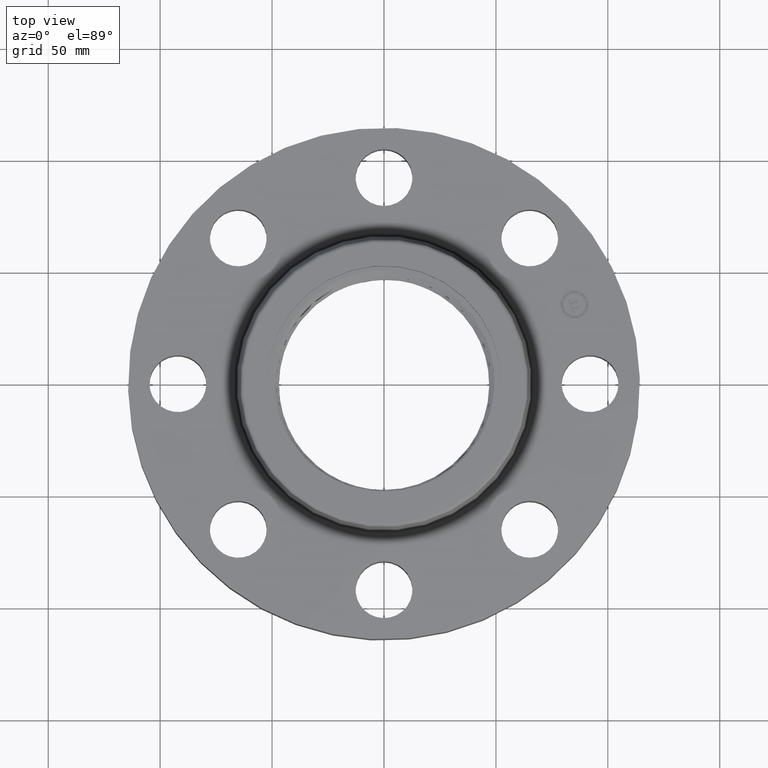
[diagram: clean part render]
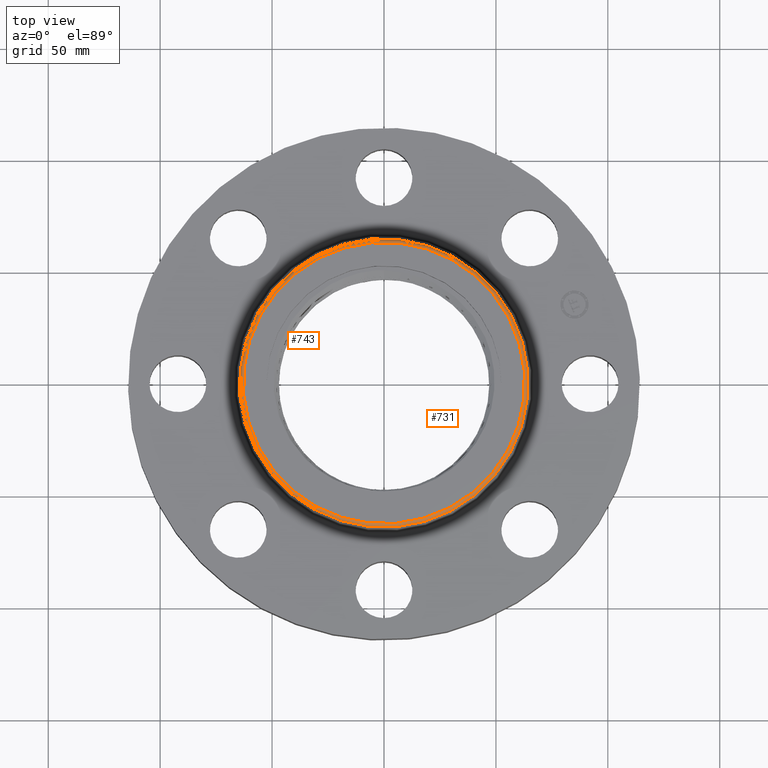
[diagram: same view with one multi-face feature highlighted, each face labeled with its STEP entity id]
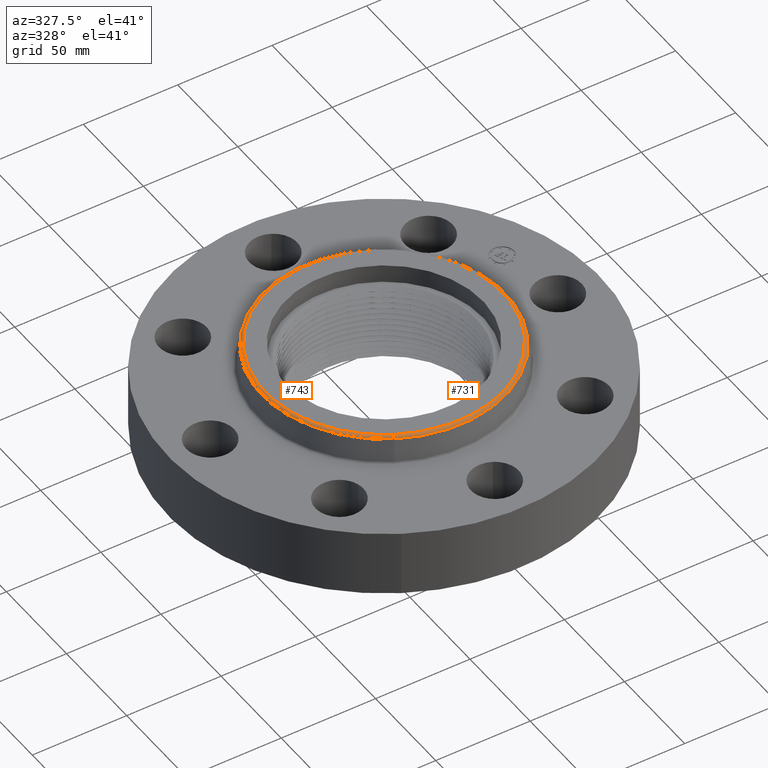
[diagram: same view with one multi-face feature highlighted, each face labeled with its STEP entity id]
A machine part, top view. The highlighted faces form ONE feature: a constant-radius fillet chain: 2 tangent blend faces with common blend radius 1.524 mm. The faces share edges in the B-rep.
A second angle (auxiliary view) of the same feature is appended — it is thin or edge-on in the first view.
Their STEP definitions:
[1] entity #731 (Torus):
#672=AXIS2_PLACEMENT_3D('Circle Axis2P3D',#670,#671,$) ;
#704=AXIS2_PLACEMENT_3D('Torus Axis2P3D',#701,#702,#703) ;
#708=AXIS2_PLACEMENT_3D('Circle Axis2P3D',#706,#707,$) ;
#715=AXIS2_PLACEMENT_3D('Circle Axis2P3D',#713,#714,$) ;
#722=AXIS2_PLACEMENT_3D('Circle Axis2P3D',#720,#721,$) ;
#667=CARTESIAN_POINT('Vertex',(1.21534344222,2.22467124864,1.89041889067)) ;
#670=CARTESIAN_POINT('Axis2P3D Location',(0.,0.,1.89041889067)) ;
#674=CARTESIAN_POINT('Vertex',(-1.21534344222,-2.22467124864,1.89041889067)) ;
#701=CARTESIAN_POINT('Axis2P3D Location',(0.,0.,1.88000000001)) ;
#706=CARTESIAN_POINT('Axis2P3D Location',(1.18701492297,2.17281624199,1.88000000001)) ;
#710=CARTESIAN_POINT('Vertex',(1.18701492297,2.17281624199,1.94000000001)) ;
#713=CARTESIAN_POINT('Axis2P3D Location',(0.,0.,1.94000000001)) ;
#717=CARTESIAN_POINT('Vertex',(-1.18701492297,-2.17281624199,1.94000000001)) ;
#720=CARTESIAN_POINT('Axis2P3D Location',(-1.18701492297,-2.17281624199,1.88000000001)) ;
#671=DIRECTION('Axis2P3D Direction',(0.,0.,-0.0393700787402)) ;
#702=DIRECTION('Axis2P3D Direction',(0.,0.,-0.0393700787402)) ;
#703=DIRECTION('Axis2P3D XDirection',(-0.0188750212049,-0.0345504945626,0.)) ;
#707=DIRECTION('Axis2P3D Direction',(-0.0345504945626,0.0188750212049,0.)) ;
#714=DIRECTION('Axis2P3D Direction',(0.,0.,-0.0393700787402)) ;
#721=DIRECTION('Axis2P3D Direction',(0.0345504945626,-0.0188750212049,0.)) ;
#726=ORIENTED_EDGE('',*,*,#676,.F.) ;
#727=ORIENTED_EDGE('',*,*,#712,.T.) ;
#728=ORIENTED_EDGE('',*,*,#719,.T.) ;
#729=ORIENTED_EDGE('',*,*,#724,.F.) ;
#731=ADVANCED_FACE('PartBody',(#730),#705,.T.) ;
#673=CIRCLE('generated circle',#672,2.53499937812) ;
#709=CIRCLE('generated circle',#708,0.0600000000002) ;
#716=CIRCLE('generated circle',#715,2.47591091294) ;
#723=CIRCLE('generated circle',#722,0.0600000000002) ;
#705=TOROIDAL_SURFACE('homeo Torus',#704,2.47591091294,0.0600000000002) ;
#676=EDGE_CURVE('',#668,#675,#673,.T.) ;
#712=EDGE_CURVE('',#668,#711,#709,.F.) ;
#719=EDGE_CURVE('',#711,#718,#716,.T.) ;
#724=EDGE_CURVE('',#675,#718,#723,.F.) ;
#725=EDGE_LOOP('',(#726,#727,#728,#729)) ;
#730=FACE_OUTER_BOUND('',#725,.T.) ;
#668=VERTEX_POINT('',#667) ;
#675=VERTEX_POINT('',#674) ;
#711=VERTEX_POINT('',#710) ;
#718=VERTEX_POINT('',#717) ;
[2] entity #743 (Torus):
#691=AXIS2_PLACEMENT_3D('Circle Axis2P3D',#689,#690,$) ;
#704=AXIS2_PLACEMENT_3D('Torus Axis2P3D',#701,#702,#703) ;
#708=AXIS2_PLACEMENT_3D('Circle Axis2P3D',#706,#707,$) ;
#722=AXIS2_PLACEMENT_3D('Circle Axis2P3D',#720,#721,$) ;
#734=AXIS2_PLACEMENT_3D('Circle Axis2P3D',#732,#733,$) ;
#667=CARTESIAN_POINT('Vertex',(1.21534344222,2.22467124864,1.89041889067)) ;
#674=CARTESIAN_POINT('Vertex',(-1.21534344222,-2.22467124864,1.89041889067)) ;
#689=CARTESIAN_POINT('Axis2P3D Location',(0.,0.,1.89041889067)) ;
#701=CARTESIAN_POINT('Axis2P3D Location',(0.,0.,1.88000000001)) ;
#706=CARTESIAN_POINT('Axis2P3D Location',(1.18701492297,2.17281624199,1.88000000001)) ;
#710=CARTESIAN_POINT('Vertex',(1.18701492297,2.17281624199,1.94000000001)) ;
#717=CARTESIAN_POINT('Vertex',(-1.18701492297,-2.17281624199,1.94000000001)) ;
#720=CARTESIAN_POINT('Axis2P3D Location',(-1.18701492297,-2.17281624199,1.88000000001)) ;
#732=CARTESIAN_POINT('Axis2P3D Location',(0.,0.,1.94000000001)) ;
#690=DIRECTION('Axis2P3D Direction',(0.,0.,-0.0393700787402)) ;
#702=DIRECTION('Axis2P3D Direction',(0.,0.,-0.0393700787402)) ;
#703=DIRECTION('Axis2P3D XDirection',(-0.0188750212049,-0.0345504945626,0.)) ;
#707=DIRECTION('Axis2P3D Direction',(-0.0345504945626,0.0188750212049,0.)) ;
#721=DIRECTION('Axis2P3D Direction',(0.0345504945626,-0.0188750212049,0.)) ;
#733=DIRECTION('Axis2P3D Direction',(0.,0.,-0.0393700787402)) ;
#738=ORIENTED_EDGE('',*,*,#693,.F.) ;
#739=ORIENTED_EDGE('',*,*,#724,.T.) ;
#740=ORIENTED_EDGE('',*,*,#736,.T.) ;
#741=ORIENTED_EDGE('',*,*,#712,.F.) ;
#743=ADVANCED_FACE('PartBody',(#742),#705,.T.) ;
#692=CIRCLE('generated circle',#691,2.53499937812) ;
#709=CIRCLE('generated circle',#708,0.0600000000002) ;
#723=CIRCLE('generated circle',#722,0.0600000000002) ;
#735=CIRCLE('generated circle',#734,2.47591091294) ;
#705=TOROIDAL_SURFACE('homeo Torus',#704,2.47591091294,0.0600000000002) ;
#693=EDGE_CURVE('',#675,#668,#692,.T.) ;
#712=EDGE_CURVE('',#668,#711,#709,.F.) ;
#724=EDGE_CURVE('',#675,#718,#723,.F.) ;
#736=EDGE_CURVE('',#718,#711,#735,.T.) ;
#737=EDGE_LOOP('',(#738,#739,#740,#741)) ;
#742=FACE_OUTER_BOUND('',#737,.T.) ;
#668=VERTEX_POINT('',#667) ;
#675=VERTEX_POINT('',#674) ;
#711=VERTEX_POINT('',#710) ;
#718=VERTEX_POINT('',#717) ;